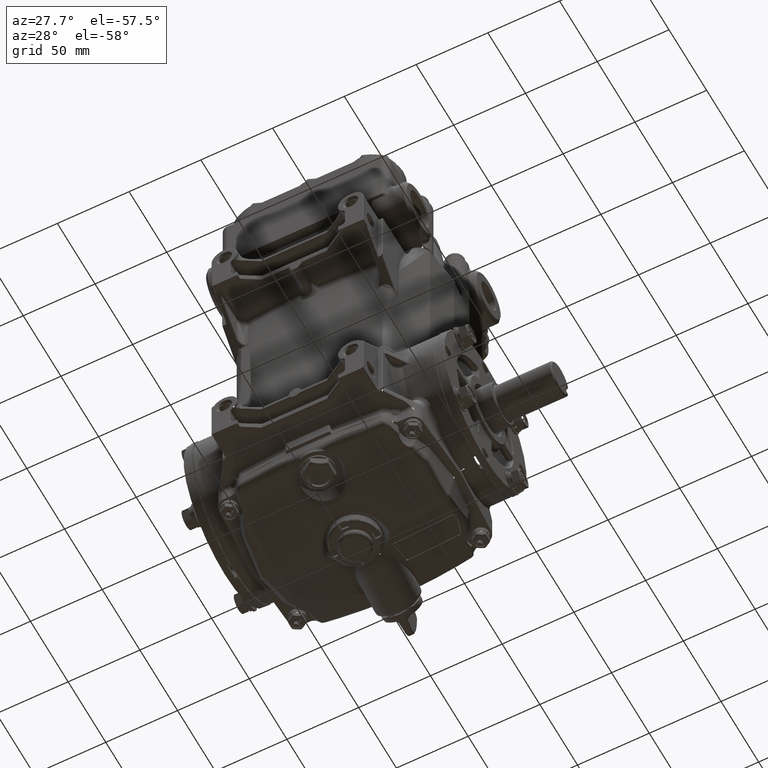
[diagram: clean part render]
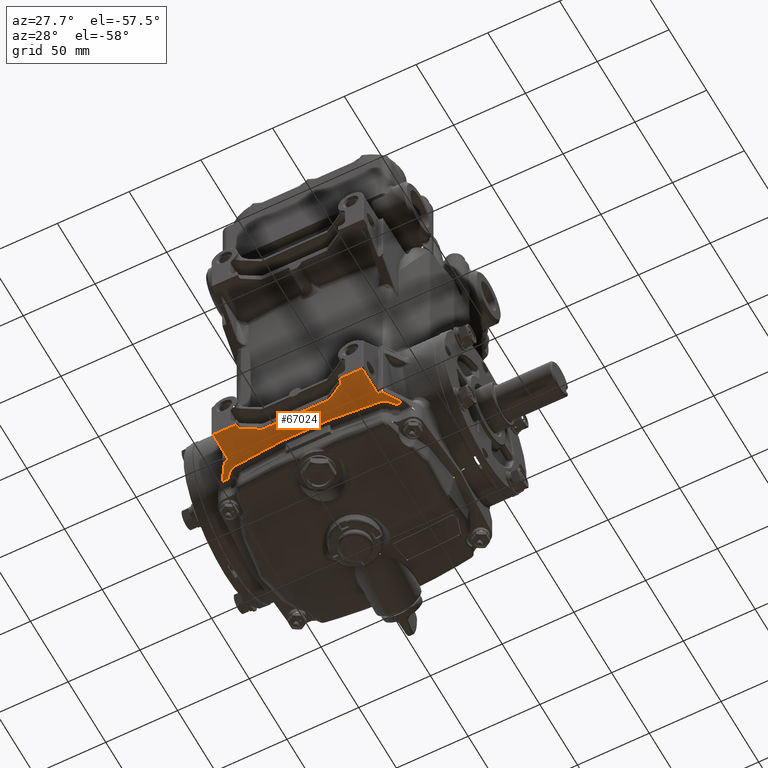
[diagram: same view with one face highlighted and labeled with its STEP entity id]
A machine part, auxiliary view. The second image highlights one B-rep face of the part: STEP entity #67024.
In plain terms, the highlighted planar face has unit normal (0, -0.0175, -0.9998).
Its self-contained STEP definition (entity closure, byte-faithful):
#1081 = VECTOR ( 'NONE', #22637, 39.37007874015748854 ) ;
#2885 = CARTESIAN_POINT ( 'NONE',  ( -1.952548125986608207, -2.493456122712021106, -1.868718917527264933 ) ) ;
#3468 = DIRECTION ( 'NONE',  ( 0.000000000000000000, 0.9998476951563912696, -0.01745240643728354982 ) ) ;
#4093 = ORIENTED_EDGE ( 'NONE', *, *, #38509, .F. ) ;
#4701 = CARTESIAN_POINT ( 'NONE',  ( 0.9385726756754197986, -3.126747094294644924, -1.857664782499836242 ) ) ;
#4714 = EDGE_CURVE ( 'NONE', #72925, #8866, #42707, .T. ) ;
#5038 = ORIENTED_EDGE ( 'NONE', *, *, #79176, .T. ) ;
#5415 = B_SPLINE_CURVE_WITH_KNOTS ( 'NONE', 3,
 ( #6637, #73299, #53844, #34352, #63879, #79785, #121014, #92142, #25516, #103415, #6036, #65098, #64491, #35578 ),
 .UNSPECIFIED., .F., .F.,
 ( 4, 2, 2, 2, 2, 2, 4 ),
 ( 0.000000000000000000, 0.002659535891228556864, 0.003989303836842834211, 0.005319071782457111125, 0.006648839728071388039, 0.007978607673685664953, 0.01063814356491423613 ),
 .UNSPECIFIED. ) ;
#5570 = CARTESIAN_POINT ( 'NONE',  ( -1.417322834645670104, -3.543307086614173596, -1.850393700787401174 ) ) ;
#5865 = LINE ( 'NONE', #63701, #42243 ) ;
#6036 = CARTESIAN_POINT ( 'NONE',  ( 2.070924379539068383, -2.461741473021120452, -1.869272498796795245 ) ) ;
#6637 = CARTESIAN_POINT ( 'NONE',  ( 2.284498252729470380, -2.261998866642373152, -1.872759018960067801 ) ) ;
#6817 = CARTESIAN_POINT ( 'NONE',  ( -2.295929750745052011, -2.248290012036177288, -1.872998307907310478 ) ) ;
#7192 = VERTEX_POINT ( 'NONE', #4701 ) ;
#7901 = CARTESIAN_POINT ( 'NONE',  ( -2.184482787875693610, -2.676105346062614299, -1.865530763474591902 ) ) ;
#8866 = VERTEX_POINT ( 'NONE', #64853 ) ;
#8924 =( BOUNDED_CURVE ( )  B_SPLINE_CURVE ( 3, ( #66546, #44627, #25715, #102395 ),
 .UNSPECIFIED., .F., .F. ) 
 B_SPLINE_CURVE_WITH_KNOTS ( ( 4, 4 ),
 ( 3.018837728285270305, 3.264347578894316371 ),
 .UNSPECIFIED. ) 
 CURVE ( )  GEOMETRIC_REPRESENTATION_ITEM ( )  RATIONAL_B_SPLINE_CURVE ( ( 1.000000000000000000, 0.9949833803782812680, 0.9949833803782812680, 1.000000000000000000 ) ) 
 REPRESENTATION_ITEM ( '' )  );
#10861 = EDGE_CURVE ( 'NONE', #36433, #15133, #31823, .T. ) ;
#10862 = CARTESIAN_POINT ( 'NONE',  ( 2.286158227953206890, -2.258776743425255251, -1.872815261330029735 ) ) ;
#11719 = DIRECTION ( 'NONE',  ( -1.000000000000000000, 0.000000000000000000, 0.000000000000000000 ) ) ;
#11936 = CARTESIAN_POINT ( 'NONE',  ( -1.417322834645669660, -3.471344604126634703, -1.851649810591616818 ) ) ;
#13038 = LINE ( 'NONE', #90326, #100251 ) ;
#13805 = CARTESIAN_POINT ( 'NONE',  ( 1.358267716535433323, -3.369058139112724781, -1.853435227479712566 ) ) ;
#13836 = LINE ( 'NONE', #109958, #57099 ) ;
#14075 = EDGE_CURVE ( 'NONE', #30062, #112934, #22263, .T. ) ;
#14133 = CARTESIAN_POINT ( 'NONE',  ( -2.161621530611956832, -2.408841644875551413, -1.870195868731768130 ) ) ;
#14724 = LINE ( 'NONE', #118418, #57121 ) ;
#15133 = VERTEX_POINT ( 'NONE', #22894 ) ;
#15826 = DIRECTION ( 'NONE',  ( 0.006980197070013981209, 0.9998233369945037641, -0.01745198126398627217 ) ) ;
#15954 = ORIENTED_EDGE ( 'NONE', *, *, #86559, .T. ) ;
#16439 = CARTESIAN_POINT ( 'NONE',  ( -1.395707161193832757, -3.390673812564561906, -1.853057924496142483 ) ) ;
#17610 = LINE ( 'NONE', #37114, #96562 ) ;
#17673 = CARTESIAN_POINT ( 'NONE',  ( -1.417322834645669660, -3.471344604126634703, -1.851649810591616818 ) ) ;
#17772 = EDGE_CURVE ( 'NONE', #94530, #24829, #80482, .T. ) ;
#18180 = DIRECTION ( 'NONE',  ( 1.000000000000000000, 0.000000000000000000, 0.000000000000000000 ) ) ;
#19108 = CARTESIAN_POINT ( 'NONE',  ( -0.9205133136483317768, -3.116320516766912796, -1.857846779087561462 ) ) ;
#19200 = CARTESIAN_POINT ( 'NONE',  ( 0.8795175575651835720, -3.110923323088082171, -1.857940987453655879 ) ) ;
#19525 = ORIENTED_EDGE ( 'NONE', *, *, #14075, .T. ) ;
#20299 = CARTESIAN_POINT ( 'NONE',  ( 2.312247300875065470, -2.240658975110772388, -1.873131508152313662 ) ) ;
#22263 = LINE ( 'NONE', #90737, #69543 ) ;
#22637 = DIRECTION ( 'NONE',  ( 0.5445806858406817552, 0.8385807180961913909, -0.01463748088192038006 ) ) ;
#22894 = CARTESIAN_POINT ( 'NONE',  ( -2.045188943963573980, -3.523965598551914713, -1.850731307717336183 ) ) ;
#22929 = CARTESIAN_POINT ( 'NONE',  ( -2.268285735877432874, -2.293468448965024553, -1.872209715357362469 ) ) ;
#23806 = DIRECTION ( 'NONE',  ( -2.312612358918789898E-15, -0.9998476951563912696, 0.01745240643728354982 ) ) ;
#24788 = CARTESIAN_POINT ( 'NONE',  ( -2.087109161750003938, -2.454374291100447802, -1.869401093435558936 ) ) ;
#24829 = VERTEX_POINT ( 'NONE', #74184 ) ;
#25289 = VERTEX_POINT ( 'NONE', #54865 ) ;
#25516 = CARTESIAN_POINT ( 'NONE',  ( 2.118093037641657350, -2.437925210078287108, -1.869688213212810091 ) ) ;
#25715 = CARTESIAN_POINT ( 'NONE',  ( 0.6541309012432191539, -2.653648678500935887, -1.865922746064952120 ) ) ;
#26819 = EDGE_CURVE ( 'NONE', #36609, #36433, #90427, .T. ) ;
#26849 = CARTESIAN_POINT ( 'NONE',  ( 1.358267716535433323, -3.369058139112724781, -1.853435227479712566 ) ) ;
#27816 = EDGE_CURVE ( 'NONE', #120481, #36609, #88032, .T. ) ;
#28025 = DIRECTION ( 'NONE',  ( -1.000000000000000000, -0.000000000000000000, -0.000000000000000000 ) ) ;
#28117 = ORIENTED_EDGE ( 'NONE', *, *, #113832, .T. ) ;
#28701 = VERTEX_POINT ( 'NONE', #85590 ) ;
#29153 = CARTESIAN_POINT ( 'NONE',  ( -0.9003707126206480504, -3.110923323088082171, -1.857940987453655435 ) ) ;
#29874 = CARTESIAN_POINT ( 'NONE',  ( 1.732283464566929387, -2.240658975110770612, -1.873131508152312996 ) ) ;
#30062 = VERTEX_POINT ( 'NONE', #104711 ) ;
#30090 = VECTOR ( 'NONE', #15826, 39.37007874015748854 ) ;
#30429 = CARTESIAN_POINT ( 'NONE',  ( 1.417322834645670104, -3.543307086614173596, -1.850393700787401174 ) ) ;
#30833 = EDGE_CURVE ( 'NONE', #71829, #111665, #31136, .T. ) ;
#31041 = VECTOR ( 'NONE', #54485, 39.37007874015748143 ) ;
#31136 =( BOUNDED_CURVE ( )  B_SPLINE_CURVE ( 3, ( #37029, #75379, #85421, #94837 ),
 .UNSPECIFIED., .F., .F. ) 
 B_SPLINE_CURVE_WITH_KNOTS ( ( 4, 4 ),
 ( 4.910189787029166197, 5.288347633542813675 ),
 .UNSPECIFIED. ) 
 CURVE ( )  GEOMETRIC_REPRESENTATION_ITEM ( )  RATIONAL_B_SPLINE_CURVE ( ( 1.000000000000000000, 0.9881185147140462144, 0.9881185147140462144, 1.000000000000000000 ) ) 
 REPRESENTATION_ITEM ( '' )  );
#31641 = CARTESIAN_POINT ( 'NONE',  ( -0.9385726756754197986, -3.126747094294644924, -1.857664782499836242 ) ) ;
#31823 = LINE ( 'NONE', #97817, #37048 ) ;
#32332 = DIRECTION ( 'NONE',  ( -1.000000000000000000, 0.000000000000000000, 0.000000000000000000 ) ) ;
#32623 = CARTESIAN_POINT ( 'NONE',  ( -2.284498252729470380, -2.261998866642373152, -1.872759018960067801 ) ) ;
#32994 = CARTESIAN_POINT ( 'NONE',  ( -2.248604297647089023, -2.322332195495655061, -1.871705896787598578 ) ) ;
#34223 = B_SPLINE_CURVE_WITH_KNOTS ( 'NONE', 3,
 ( #110868, #22929, #32994, #41848, #91422, #34852, #14133, #82609, #90183, #24788, #63155, #71339, #52501, #101471 ),
 .UNSPECIFIED., .F., .F.,
 ( 4, 2, 2, 2, 2, 2, 4 ),
 ( 0.000000000000000000, 0.002659535891228556864, 0.003989303836842834211, 0.005319071782457111125, 0.006648839728071388039, 0.007978607673685664953, 0.01063814356491423613 ),
 .UNSPECIFIED. ) ;
#34352 = CARTESIAN_POINT ( 'NONE',  ( 2.214055961500986047, -2.361852175780839058, -1.871016072965758115 ) ) ;
#34852 = CARTESIAN_POINT ( 'NONE',  ( -2.175352069186287984, -2.397981601696853371, -1.870385431490575456 ) ) ;
#35578 = CARTESIAN_POINT ( 'NONE',  ( 1.952548125986608207, -2.493456122712021106, -1.868718917527264933 ) ) ;
#35883 = DIRECTION ( 'NONE',  ( -1.000000000000000000, 0.000000000000000000, 0.000000000000000000 ) ) ;
#36176 = CARTESIAN_POINT ( 'NONE',  ( -0.8795175575651835720, -3.110923323088082171, -1.857940987453655879 ) ) ;
#36433 = VERTEX_POINT ( 'NONE', #54763 ) ;
#36609 = VERTEX_POINT ( 'NONE', #11936 ) ;
#36990 = ORIENTED_EDGE ( 'NONE', *, *, #30833, .F. ) ;
#37029 = CARTESIAN_POINT ( 'NONE',  ( 2.167731147899950805, -2.717222535686507623, -1.864813060260041011 ) ) ;
#37048 = VECTOR ( 'NONE', #11719, 39.37007874015748143 ) ;
#37114 = CARTESIAN_POINT ( 'NONE',  ( -1.732283464566929387, -2.717222535686507623, -1.864813060260041011 ) ) ;
#37674 = CARTESIAN_POINT ( 'NONE',  ( 1.732283464566929387, -2.717222535686507623, -1.864813060260041011 ) ) ;
#38057 = CARTESIAN_POINT ( 'NONE',  ( 0.9385726756754197986, -3.126747094294644924, -1.857664782499836242 ) ) ;
#38292 = CARTESIAN_POINT ( 'NONE',  ( 1.417322834645670104, -3.523965598551914713, -1.850731307717336183 ) ) ;
#38509 = EDGE_CURVE ( 'NONE', #7192, #72925, #14724, .T. ) ;
#38682 = CARTESIAN_POINT ( 'NONE',  ( 0.9205133136483317768, -3.116320516766912796, -1.857846779087561462 ) ) ;
#39013 =( BOUNDED_CURVE ( )  B_SPLINE_CURVE ( 3, ( #49906, #29153, #19108, #31641 ),
 .UNSPECIFIED., .F., .F. ) 
 B_SPLINE_CURVE_WITH_KNOTS ( ( 4, 4 ),
 ( 3.141592653589793116, 3.665191429188092265 ),
 .UNSPECIFIED. ) 
 CURVE ( )  GEOMETRIC_REPRESENTATION_ITEM ( )  RATIONAL_B_SPLINE_CURVE ( ( 1.000000000000000000, 0.9772838841927120601, 0.9772838841927120601, 1.000000000000000000 ) ) 
 REPRESENTATION_ITEM ( '' )  );
#40042 = EDGE_CURVE ( 'NONE', #111665, #114173, #71669, .T. ) ;
#40611 = FACE_OUTER_BOUND ( 'NONE', #99954, .T. ) ;
#41848 = CARTESIAN_POINT ( 'NONE',  ( -2.214055961500986047, -2.361852175780839058, -1.871016072965758115 ) ) ;
#42070 = ORIENTED_EDGE ( 'NONE', *, *, #75731, .T. ) ;
#42243 = VECTOR ( 'NONE', #63077, 39.37007874015748143 ) ;
#42593 = LINE ( 'NONE', #44460, #31041 ) ;
#42599 = DIRECTION ( 'NONE',  ( -0.8659924231677005313, -0.4999809586320485000, 0.008727200095794897250 ) ) ;
#42707 =( BOUNDED_CURVE ( )  B_SPLINE_CURVE ( 3, ( #26849, #55799, #105379, #93462 ),
 .UNSPECIFIED., .F., .F. ) 
 B_SPLINE_CURVE_WITH_KNOTS ( ( 4, 4 ),
 ( 3.665191429188090488, 4.712388980384689674 ),
 .UNSPECIFIED. ) 
 CURVE ( )  GEOMETRIC_REPRESENTATION_ITEM ( )  RATIONAL_B_SPLINE_CURVE ( ( 1.000000000000000000, 0.9106836025229588794, 0.9106836025229588794, 1.000000000000000000 ) ) 
 REPRESENTATION_ITEM ( '' )  );
#42750 = ORIENTED_EDGE ( 'NONE', *, *, #40042, .F. ) ;
#44046 = CARTESIAN_POINT ( 'NONE',  ( 2.481054562977115463, -2.219424860327630977, -1.873502151004545979 ) ) ;
#44460 = CARTESIAN_POINT ( 'NONE',  ( 1.732283464566929387, -3.523965598551914713, -1.850731307717336183 ) ) ;
#44627 = CARTESIAN_POINT ( 'NONE',  ( -0.6541309012432159342, -2.653648678500935887, -1.865922746064952120 ) ) ;
#45213 = CARTESIAN_POINT ( 'NONE',  ( -2.293109355266974347, -2.250591103405410465, -1.872958142208054788 ) ) ;
#45832 = CARTESIAN_POINT ( 'NONE',  ( -2.288216585419623250, -2.255853877462528523, -1.872866280145185414 ) ) ;
#46784 = CARTESIAN_POINT ( 'NONE',  ( 2.305087233816607739, -2.242699249692432950, -1.873095895027018898 ) ) ;
#47628 = VERTEX_POINT ( 'NONE', #119821 ) ;
#48140 = LINE ( 'NONE', #29874, #85742 ) ;
#48490 = VECTOR ( 'NONE', #51785, 39.37007874015748854 ) ;
#49906 = CARTESIAN_POINT ( 'NONE',  ( -0.8795175575651835720, -3.110923323088082171, -1.857940987453655879 ) ) ;
#50361 = B_SPLINE_CURVE_WITH_KNOTS ( 'NONE', 3,
 ( #57451, #20299, #46784, #66846, #124013, #123397, #10862, #95748 ),
 .UNSPECIFIED., .F., .F.,
 ( 4, 2, 2, 4 ),
 ( 0.000000000000000000, 0.0005519795214361233058, 0.0008279692821541813266, 0.001103959042872239456 ),
 .UNSPECIFIED. ) ;
#50669 = PLANE ( 'NONE',  #95510 ) ;
#50750 = ORIENTED_EDGE ( 'NONE', *, *, #105149, .T. ) ;
#51785 = DIRECTION ( 'NONE',  ( -0.5445806858406817552, 0.8385807180961913909, -0.01463748088192038006 ) ) ;
#52501 = CARTESIAN_POINT ( 'NONE',  ( -1.987686189175695173, -2.489120955216959974, -1.868794588157365988 ) ) ;
#53649 = LINE ( 'NONE', #91326, #48490 ) ;
#53844 = CARTESIAN_POINT ( 'NONE',  ( 2.248604297647089023, -2.322332195495655061, -1.871705896787598578 ) ) ;
#54485 = DIRECTION ( 'NONE',  ( 1.000000000000000000, 0.000000000000000000, 0.000000000000000000 ) ) ;
#54763 = CARTESIAN_POINT ( 'NONE',  ( -1.417322834645670104, -3.523965598551914713, -1.850731307717336183 ) ) ;
#54865 = CARTESIAN_POINT ( 'NONE',  ( 2.319497363882059737, -2.240658975110770612, -1.873131508152312996 ) ) ;
#55218 = ORIENTED_EDGE ( 'NONE', *, *, #4714, .F. ) ;
#55703 = CARTESIAN_POINT ( 'NONE',  ( -2.170674430222784945, -2.702537073013135505, -1.865069395964504828 ) ) ;
#55706 = CARTESIAN_POINT ( 'NONE',  ( -1.358267716535433323, -3.369058139112724781, -1.853435227479712566 ) ) ;
#55799 = CARTESIAN_POINT ( 'NONE',  ( 1.395707161193832757, -3.390673812564561906, -1.853057924496142483 ) ) ;
#55825 = ORIENTED_EDGE ( 'NONE', *, *, #76130, .F. ) ;
#56333 = VERTEX_POINT ( 'NONE', #38292 ) ;
#57099 = VECTOR ( 'NONE', #99312, 39.37007874015748854 ) ;
#57121 = VECTOR ( 'NONE', #81356, 39.37007874015748854 ) ;
#57451 = CARTESIAN_POINT ( 'NONE',  ( 2.319497363882059737, -2.240658975110770612, -1.873131508152312996 ) ) ;
#57468 = ORIENTED_EDGE ( 'NONE', *, *, #27816, .T. ) ;
#57826 = ORIENTED_EDGE ( 'NONE', *, *, #82087, .F. ) ;
#58132 = LINE ( 'NONE', #30429, #69780 ) ;
#60091 = DIRECTION ( 'NONE',  ( 0.000000000000000000, -0.01745240643728354982, -0.9998476951563912696 ) ) ;
#60918 = VERTEX_POINT ( 'NONE', #108968 ) ;
#61309 = ORIENTED_EDGE ( 'NONE', *, *, #17772, .T. ) ;
#61325 = CARTESIAN_POINT ( 'NONE',  ( -1.732283464566929387, -3.543307086614173151, -1.850393700787401174 ) ) ;
#63077 = DIRECTION ( 'NONE',  ( 1.000000000000000000, -0.000000000000000000, -0.000000000000000000 ) ) ;
#63155 = CARTESIAN_POINT ( 'NONE',  ( -2.070924379539068383, -2.461741473021120452, -1.869272498796795245 ) ) ;
#63701 = CARTESIAN_POINT ( 'NONE',  ( -1.732283464566929387, -2.240658975110770612, -1.873131508152312996 ) ) ;
#63879 = CARTESIAN_POINT ( 'NONE',  ( 2.201609750852671521, -2.374460928797260451, -1.870795986363192887 ) ) ;
#64491 = CARTESIAN_POINT ( 'NONE',  ( 1.987686189175695173, -2.489120955216959974, -1.868794588157365988 ) ) ;
#64853 = CARTESIAN_POINT ( 'NONE',  ( 1.417322834645669660, -3.471344604126634703, -1.851649810591616818 ) ) ;
#65056 = VERTEX_POINT ( 'NONE', #92245 ) ;
#65098 = CARTESIAN_POINT ( 'NONE',  ( 2.021663922696795623, -2.480619562025745850, -1.868942980527499520 ) ) ;
#66546 = CARTESIAN_POINT ( 'NONE',  ( -1.952548125986608207, -2.493456122712021106, -1.868718917527264933 ) ) ;
#66846 = CARTESIAN_POINT ( 'NONE',  ( 2.295929750745052011, -2.248290012036177288, -1.872998307907310478 ) ) ;
#67024 = ADVANCED_FACE ( 'NONE', ( #40611 ), #50669, .T. ) ;
#67815 = LINE ( 'NONE', #37674, #118572 ) ;
#68198 = CARTESIAN_POINT ( 'NONE',  ( 0.9003707126206480504, -3.110923323088082171, -1.857940987453655435 ) ) ;
#68615 = ORIENTED_EDGE ( 'NONE', *, *, #93917, .F. ) ;
#69543 = VECTOR ( 'NONE', #32332, 39.37007874015748143 ) ;
#69780 = VECTOR ( 'NONE', #115254, 39.37007874015748143 ) ;
#70219 = ORIENTED_EDGE ( 'NONE', *, *, #116789, .F. ) ;
#70473 = EDGE_CURVE ( 'NONE', #8866, #56333, #58132, .T. ) ;
#70846 = VERTEX_POINT ( 'NONE', #105553 ) ;
#71339 = CARTESIAN_POINT ( 'NONE',  ( -2.021663922696795623, -2.480619562025745850, -1.868942980527499520 ) ) ;
#71669 = LINE ( 'NONE', #44046, #1081 ) ;
#71829 = VERTEX_POINT ( 'NONE', #85207 ) ;
#71950 = EDGE_CURVE ( 'NONE', #30062, #7192, #96076, .T. ) ;
#72925 = VERTEX_POINT ( 'NONE', #13805 ) ;
#73060 = ORIENTED_EDGE ( 'NONE', *, *, #99929, .F. ) ;
#73299 = CARTESIAN_POINT ( 'NONE',  ( 2.268285735877432874, -2.293468448965024553, -1.872209715357362469 ) ) ;
#74184 = CARTESIAN_POINT ( 'NONE',  ( -2.184482787875693610, -2.676105346062614299, -1.865530763474591902 ) ) ;
#74893 = VERTEX_POINT ( 'NONE', #75027 ) ;
#75027 = CARTESIAN_POINT ( 'NONE',  ( 2.284498252729470380, -2.261998866642373152, -1.872759018960067801 ) ) ;
#75379 = CARTESIAN_POINT ( 'NONE',  ( 2.170674430222784945, -2.702537073013135505, -1.865069395964504828 ) ) ;
#75731 = EDGE_CURVE ( 'NONE', #28701, #120481, #13038, .T. ) ;
#76130 = EDGE_CURVE ( 'NONE', #124178, #60918, #91891, .T. ) ;
#79176 = EDGE_CURVE ( 'NONE', #24829, #65056, #53649, .T. ) ;
#79785 = CARTESIAN_POINT ( 'NONE',  ( 2.175352069186287984, -2.397981601696853371, -1.870385431490575456 ) ) ;
#80450 = ORIENTED_EDGE ( 'NONE', *, *, #99584, .T. ) ;
#80482 =( BOUNDED_CURVE ( )  B_SPLINE_CURVE ( 3, ( #114694, #55703, #93995, #7901 ),
 .UNSPECIFIED., .F., .F. ) 
 B_SPLINE_CURVE_WITH_KNOTS ( ( 4, 4 ),
 ( 4.910189787029166197, 5.288347633542813675 ),
 .UNSPECIFIED. ) 
 CURVE ( )  GEOMETRIC_REPRESENTATION_ITEM ( )  RATIONAL_B_SPLINE_CURVE ( ( 1.000000000000000000, 0.9881185147140462144, 0.9881185147140462144, 1.000000000000000000 ) ) 
 REPRESENTATION_ITEM ( '' )  );
#81356 = DIRECTION ( 'NONE',  ( 0.8659924231677005313, -0.4999809586320485000, 0.008727200095794897250 ) ) ;
#82087 = EDGE_CURVE ( 'NONE', #25289, #74893, #50361, .T. ) ;
#82282 = CARTESIAN_POINT ( 'NONE',  ( -2.286158227953206890, -2.258776743425255251, -1.872815261330029735 ) ) ;
#82609 = CARTESIAN_POINT ( 'NONE',  ( -2.132992046881720505, -2.428813497009391753, -1.869847258756034636 ) ) ;
#84136 = CARTESIAN_POINT ( 'NONE',  ( -2.284498252729470380, -2.261998866642373152, -1.872759018960067801 ) ) ;
#85207 = CARTESIAN_POINT ( 'NONE',  ( 2.167731147899950805, -2.717222535686507623, -1.864813060260041011 ) ) ;
#85421 = CARTESIAN_POINT ( 'NONE',  ( 2.176325452755775380, -2.688666540611869937, -1.865311507008157621 ) ) ;
#85590 = CARTESIAN_POINT ( 'NONE',  ( -0.9385726756754197986, -3.126747094294644924, -1.857664782499836242 ) ) ;
#85742 = VECTOR ( 'NONE', #28025, 39.37007874015748143 ) ;
#86559 = EDGE_CURVE ( 'NONE', #94374, #47628, #8924, .T. ) ;
#88032 =( BOUNDED_CURVE ( )  B_SPLINE_CURVE ( 3, ( #121386, #16439, #113188, #17673 ),
 .UNSPECIFIED., .F., .F. ) 
 B_SPLINE_CURVE_WITH_KNOTS ( ( 4, 4 ),
 ( 3.665191429188090488, 4.712388980384689674 ),
 .UNSPECIFIED. ) 
 CURVE ( )  GEOMETRIC_REPRESENTATION_ITEM ( )  RATIONAL_B_SPLINE_CURVE ( ( 1.000000000000000000, 0.9106836025229588794, 0.9106836025229588794, 1.000000000000000000 ) ) 
 REPRESENTATION_ITEM ( '' )  );
#88940 = VERTEX_POINT ( 'NONE', #100292 ) ;
#90183 = CARTESIAN_POINT ( 'NONE',  ( -2.118093037641657350, -2.437925210078287108, -1.869688213212810091 ) ) ;
#90326 = CARTESIAN_POINT ( 'NONE',  ( -1.714227410395904538, -3.574571564183724792, -1.849847977301477764 ) ) ;
#90427 = LINE ( 'NONE', #5570, #102438 ) ;
#90737 = CARTESIAN_POINT ( 'NONE',  ( -1.732283464566929387, -3.110923323088082171, -1.857940987453655879 ) ) ;
#91326 = CARTESIAN_POINT ( 'NONE',  ( -2.481054562977115463, -2.219424860327630977, -1.873502151004545979 ) ) ;
#91422 = CARTESIAN_POINT ( 'NONE',  ( -2.201609750852671521, -2.374460928797260451, -1.870795986363192887 ) ) ;
#91891 = LINE ( 'NONE', #101942, #30090 ) ;
#92142 = CARTESIAN_POINT ( 'NONE',  ( 2.132992046881720505, -2.428813497009391753, -1.869847258756034636 ) ) ;
#92245 = CARTESIAN_POINT ( 'NONE',  ( -2.467264967602117220, -2.240658975110770612, -1.873131508152312996 ) ) ;
#92913 = CARTESIAN_POINT ( 'NONE',  ( -2.312247300875065470, -2.240658975110771500, -1.873131508152313662 ) ) ;
#93462 = CARTESIAN_POINT ( 'NONE',  ( 1.417322834645669660, -3.471344604126634703, -1.851649810591616818 ) ) ;
#93917 = EDGE_CURVE ( 'NONE', #60918, #71829, #67815, .T. ) ;
#93995 = CARTESIAN_POINT ( 'NONE',  ( -2.176325452755775380, -2.688666540611869937, -1.865311507008157621 ) ) ;
#94374 = VERTEX_POINT ( 'NONE', #2885 ) ;
#94530 = VERTEX_POINT ( 'NONE', #112772 ) ;
#94818 = ORIENTED_EDGE ( 'NONE', *, *, #26819, .T. ) ;
#94837 = CARTESIAN_POINT ( 'NONE',  ( 2.184482787875693610, -2.676105346062614299, -1.865530763474591902 ) ) ;
#95510 = AXIS2_PLACEMENT_3D ( 'NONE', #61325, #60091, #3468 ) ;
#95748 = CARTESIAN_POINT ( 'NONE',  ( 2.284498252729470380, -2.261998866642373152, -1.872759018960067801 ) ) ;
#96076 =( BOUNDED_CURVE ( )  B_SPLINE_CURVE ( 3, ( #19200, #68198, #38682, #38057 ),
 .UNSPECIFIED., .F., .F. ) 
 B_SPLINE_CURVE_WITH_KNOTS ( ( 4, 4 ),
 ( 3.141592653589793116, 3.665191429188092265 ),
 .UNSPECIFIED. ) 
 CURVE ( )  GEOMETRIC_REPRESENTATION_ITEM ( )  RATIONAL_B_SPLINE_CURVE ( ( 1.000000000000000000, 0.9772838841927120601, 0.9772838841927120601, 1.000000000000000000 ) ) 
 REPRESENTATION_ITEM ( '' )  );
#96562 = VECTOR ( 'NONE', #35883, 39.37007874015748143 ) ;
#97817 = CARTESIAN_POINT ( 'NONE',  ( -1.732283464566929387, -3.523965598551914713, -1.850731307717336183 ) ) ;
#99114 = CARTESIAN_POINT ( 'NONE',  ( 2.045188943963573980, -3.523965598551914713, -1.850731307717336183 ) ) ;
#99241 = ORIENTED_EDGE ( 'NONE', *, *, #122854, .F. ) ;
#99312 = DIRECTION ( 'NONE',  ( -0.006980197070013981209, 0.9998233369945037641, -0.01745198126398627217 ) ) ;
#99584 = EDGE_CURVE ( 'NONE', #88940, #112551, #116890, .T. ) ;
#99929 = EDGE_CURVE ( 'NONE', #114173, #25289, #48140, .T. ) ;
#99954 = EDGE_LOOP ( 'NONE', ( #28117, #122890, #61309, #5038, #50750, #80450, #106080, #15954, #99241, #57826, #73060, #42750, #36990, #68615, #55825, #70219, #122726, #55218, #4093, #105241, #19525, #106223, #42070, #57468, #94818, #108125 ) ) ;
#100251 = VECTOR ( 'NONE', #42599, 39.37007874015748854 ) ;
#100292 = CARTESIAN_POINT ( 'NONE',  ( -2.319497363882059737, -2.240658975110770612, -1.873131508152312996 ) ) ;
#101471 = CARTESIAN_POINT ( 'NONE',  ( -1.952548125986608207, -2.493456122712021106, -1.868718917527264933 ) ) ;
#101942 = CARTESIAN_POINT ( 'NONE',  ( 2.045038673548429387, -3.545489900289328755, -1.850355599632975023 ) ) ;
#102302 = CARTESIAN_POINT ( 'NONE',  ( 2.184482787875693610, -2.676105346062614299, -1.865530763474591902 ) ) ;
#102395 = CARTESIAN_POINT ( 'NONE',  ( 1.952548125986608207, -2.493456122712021106, -1.868718917527264933 ) ) ;
#102438 = VECTOR ( 'NONE', #23806, 39.37007874015748143 ) ;
#103415 = CARTESIAN_POINT ( 'NONE',  ( 2.087109161750003938, -2.454374291100447802, -1.869401093435558936 ) ) ;
#104711 = CARTESIAN_POINT ( 'NONE',  ( 0.8795175575651835720, -3.110923323088082171, -1.857940987453655879 ) ) ;
#105149 = EDGE_CURVE ( 'NONE', #65056, #88940, #5865, .T. ) ;
#105241 = ORIENTED_EDGE ( 'NONE', *, *, #71950, .F. ) ;
#105379 = CARTESIAN_POINT ( 'NONE',  ( 1.417322834645669438, -3.428113257222960453, -1.852404416558754097 ) ) ;
#105553 = CARTESIAN_POINT ( 'NONE',  ( -2.050821164532254492, -2.717222535686507623, -1.864813060260041011 ) ) ;
#106080 = ORIENTED_EDGE ( 'NONE', *, *, #113376, .T. ) ;
#106223 = ORIENTED_EDGE ( 'NONE', *, *, #108187, .T. ) ;
#106464 = EDGE_CURVE ( 'NONE', #70846, #94530, #17610, .T. ) ;
#108125 = ORIENTED_EDGE ( 'NONE', *, *, #10861, .T. ) ;
#108187 = EDGE_CURVE ( 'NONE', #112934, #28701, #39013, .T. ) ;
#108968 = CARTESIAN_POINT ( 'NONE',  ( 2.050821164532254492, -2.717222535686507623, -1.864813060260041011 ) ) ;
#109958 = CARTESIAN_POINT ( 'NONE',  ( -2.045038673548429387, -3.545489900289328755, -1.850355599632975023 ) ) ;
#110868 = CARTESIAN_POINT ( 'NONE',  ( -2.284498252729470380, -2.261998866642373152, -1.872759018960067801 ) ) ;
#111665 = VERTEX_POINT ( 'NONE', #102302 ) ;
#112551 = VERTEX_POINT ( 'NONE', #32623 ) ;
#112772 = CARTESIAN_POINT ( 'NONE',  ( -2.167731147899950805, -2.717222535686507623, -1.864813060260041011 ) ) ;
#112934 = VERTEX_POINT ( 'NONE', #36176 ) ;
#113188 = CARTESIAN_POINT ( 'NONE',  ( -1.417322834645669438, -3.428113257222960453, -1.852404416558754097 ) ) ;
#113376 = EDGE_CURVE ( 'NONE', #112551, #94374, #34223, .T. ) ;
#113832 = EDGE_CURVE ( 'NONE', #15133, #70846, #13836, .T. ) ;
#114173 = VERTEX_POINT ( 'NONE', #119227 ) ;
#114694 = CARTESIAN_POINT ( 'NONE',  ( -2.167731147899950805, -2.717222535686507623, -1.864813060260041011 ) ) ;
#115254 = DIRECTION ( 'NONE',  ( 2.312612358918789898E-15, -0.9998476951563912696, 0.01745240643728354982 ) ) ;
#116789 = EDGE_CURVE ( 'NONE', #56333, #124178, #42593, .T. ) ;
#116890 = B_SPLINE_CURVE_WITH_KNOTS ( 'NONE', 3,
 ( #123066, #92913, #121197, #6817, #45213, #45832, #82282, #84136 ),
 .UNSPECIFIED., .F., .F.,
 ( 4, 2, 2, 4 ),
 ( 0.000000000000000000, 0.0005519795214361241731, 0.0008279692821541826276, 0.001103959042872241191 ),
 .UNSPECIFIED. ) ;
#118418 = CARTESIAN_POINT ( 'NONE',  ( 1.714227410395904538, -3.574571564183724792, -1.849847977301477764 ) ) ;
#118572 = VECTOR ( 'NONE', #18180, 39.37007874015748143 ) ;
#119227 = CARTESIAN_POINT ( 'NONE',  ( 2.467264967602117220, -2.240658975110770612, -1.873131508152312996 ) ) ;
#119821 = CARTESIAN_POINT ( 'NONE',  ( 1.952548125986608207, -2.493456122712021106, -1.868718917527264933 ) ) ;
#120481 = VERTEX_POINT ( 'NONE', #55706 ) ;
#121014 = CARTESIAN_POINT ( 'NONE',  ( 2.161621530611956832, -2.408841644875551413, -1.870195868731768130 ) ) ;
#121197 = CARTESIAN_POINT ( 'NONE',  ( -2.305087233816607739, -2.242699249692432950, -1.873095895027018898 ) ) ;
#121386 = CARTESIAN_POINT ( 'NONE',  ( -1.358267716535433323, -3.369058139112724781, -1.853435227479712566 ) ) ;
#122726 = ORIENTED_EDGE ( 'NONE', *, *, #70473, .F. ) ;
#122854 = EDGE_CURVE ( 'NONE', #74893, #47628, #5415, .T. ) ;
#122890 = ORIENTED_EDGE ( 'NONE', *, *, #106464, .T. ) ;
#123066 = CARTESIAN_POINT ( 'NONE',  ( -2.319497363882059737, -2.240658975110770612, -1.873131508152312996 ) ) ;
#123397 = CARTESIAN_POINT ( 'NONE',  ( 2.288216585419623250, -2.255853877462528523, -1.872866280145185414 ) ) ;
#124013 = CARTESIAN_POINT ( 'NONE',  ( 2.293109355266974347, -2.250591103405410465, -1.872958142208054788 ) ) ;
#124178 = VERTEX_POINT ( 'NONE', #99114 ) ;